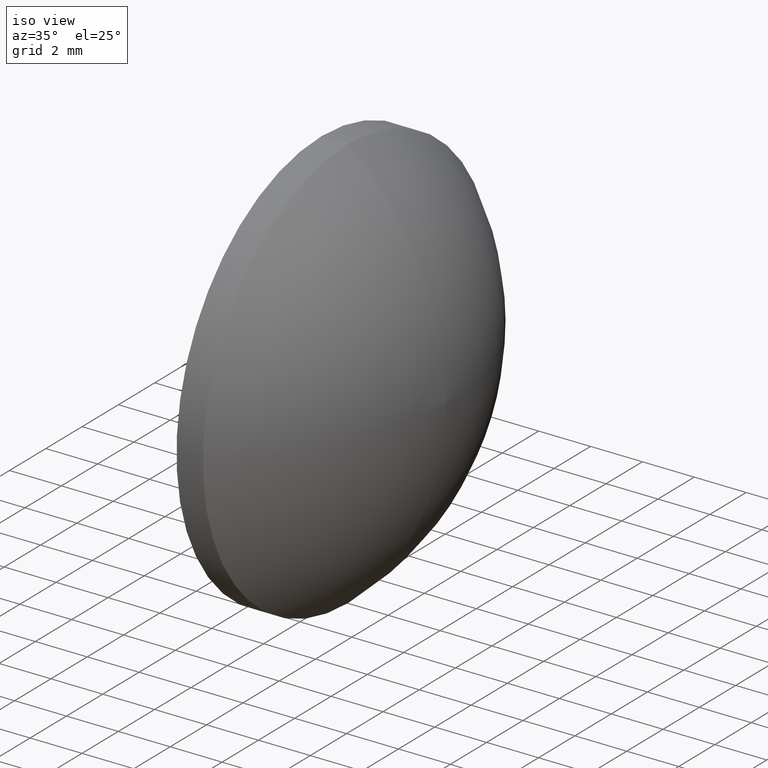
[diagram: clean part render]
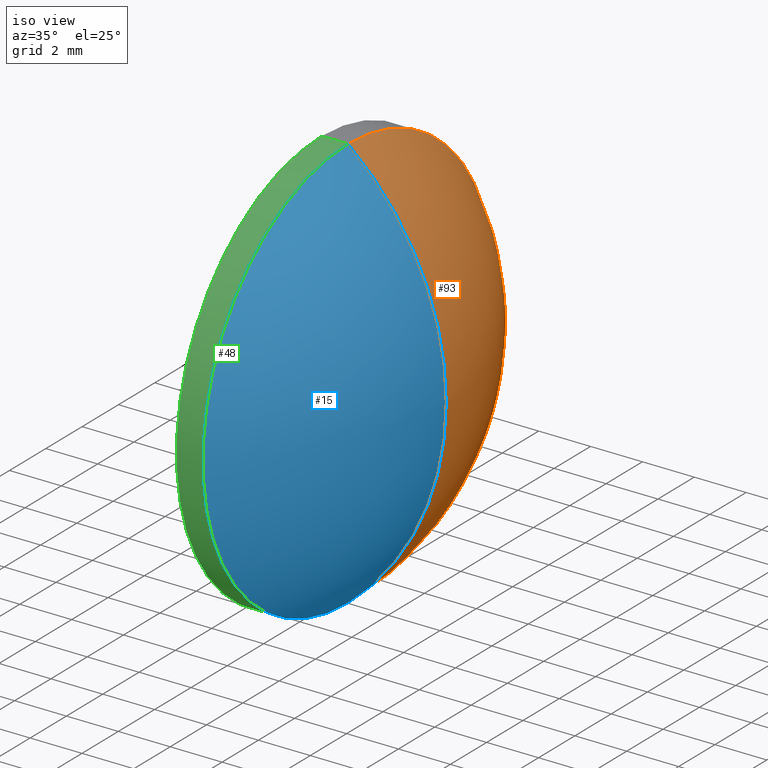
[diagram: same view with three faces highlighted in distinct colors, each labeled with its STEP entity id]
A machine part, iso view with three faces highlighted in distinct colors.
Their STEP definitions:

[orange] entity #93 — the highlighted toroidal blend (fillet) surface has major radius 0.0051 mm and minor (blend) radius 10.3449 mm.
#4 = DIRECTION ( 'NONE',  ( -0.0000000000000000000, 1.000000000000000000, 1.224646799147353200E-016 ) ) ;
#6 = CARTESIAN_POINT ( 'NONE',  ( 444.3056959863679900, 135.4163009679578000, 0.005081351781899279300 ) ) ;
#10 = VERTEX_POINT ( 'NONE', #75 ) ;
#11 = AXIS2_PLACEMENT_3D ( 'NONE', #70, #33, #102 ) ;
#21 = CARTESIAN_POINT ( 'NONE',  ( 444.3056959863679900, 135.4163009679578000, 0.0000000000000000000 ) ) ;
#24 = AXIS2_PLACEMENT_3D ( 'NONE', #149, #4, #34 ) ;
#33 = DIRECTION ( 'NONE',  ( -1.000000000000000000, -0.0000000000000000000, -0.0000000000000000000 ) ) ;
#34 = DIRECTION ( 'NONE',  ( 0.0000000000000000000, 0.0000000000000000000, 1.000000000000000000 ) ) ;
#37 = FACE_OUTER_BOUND ( 'NONE', #131, .T. ) ;
#49 = TOROIDAL_SURFACE ( 'NONE', #50, 0.005081351781899279300, 10.34485552991298700 ) ;
#50 = AXIS2_PLACEMENT_3D ( 'NONE', #21, #53, #111 ) ;
#53 = DIRECTION ( 'NONE',  ( -1.000000000000000000, -0.0000000000000000000, -0.0000000000000000000 ) ) ;
#56 = EDGE_CURVE ( 'NONE', #59, #10, #58, .T. ) ;
#58 = CIRCLE ( 'NONE', #11, 8.000000000000007100 ) ;
#59 = VERTEX_POINT ( 'NONE', #62 ) ;
#62 = CARTESIAN_POINT ( 'NONE',  ( 450.8705502683110400, 135.4163009679578000, 8.000000000000003600 ) ) ;
#70 = CARTESIAN_POINT ( 'NONE',  ( 450.8705502683110400, 135.4163009679578000, 0.0000000000000000000 ) ) ;
#75 = CARTESIAN_POINT ( 'NONE',  ( 450.8705502683110400, 135.4163009679578000, -8.000000000000003600 ) ) ;
#93 = ADVANCED_FACE ( 'NONE', ( #37 ), #49, .T. ) ;
#95 = DIRECTION ( 'NONE',  ( 0.0000000000000000000, 0.0000000000000000000, -1.000000000000000000 ) ) ;
#97 = ORIENTED_EDGE ( 'NONE', *, *, #56, .F. ) ;
#98 = VERTEX_POINT ( 'NONE', #164 ) ;
#102 = DIRECTION ( 'NONE',  ( 0.0000000000000000000, 0.0000000000000000000, 1.000000000000000000 ) ) ;
#111 = DIRECTION ( 'NONE',  ( 0.0000000000000000000, 0.0000000000000000000, 1.000000000000000000 ) ) ;
#115 = ORIENTED_EDGE ( 'NONE', *, *, #137, .T. ) ;
#118 = CIRCLE ( 'NONE', #24, 10.34485552991298700 ) ;
#122 = DIRECTION ( 'NONE',  ( 0.0000000000000000000, -1.000000000000000000, 0.0000000000000000000 ) ) ;
#124 = AXIS2_PLACEMENT_3D ( 'NONE', #6, #122, #95 ) ;
#131 = EDGE_LOOP ( 'NONE', ( #147, #115, #97 ) ) ;
#137 = EDGE_CURVE ( 'NONE', #98, #10, #118, .T. ) ;
#145 = EDGE_CURVE ( 'NONE', #98, #59, #152, .T. ) ;
#147 = ORIENTED_EDGE ( 'NONE', *, *, #145, .F. ) ;
#149 = CARTESIAN_POINT ( 'NONE',  ( 444.3056959863679900, 135.4163009679578000, -0.005081351781899279300 ) ) ;
#152 = CIRCLE ( 'NONE', #124, 10.34485552991298700 ) ;
#164 = CARTESIAN_POINT ( 'NONE',  ( 454.6505502683110100, 135.4163009679578000, 0.0000000000000000000 ) ) ;

[blue] entity #15 — the highlighted toroidal blend (fillet) surface has major radius 0.0051 mm and minor (blend) radius 10.3449 mm.
#2 = AXIS2_PLACEMENT_3D ( 'NONE', #141, #143, #157 ) ;
#4 = DIRECTION ( 'NONE',  ( -0.0000000000000000000, 1.000000000000000000, 1.224646799147353200E-016 ) ) ;
#6 = CARTESIAN_POINT ( 'NONE',  ( 444.3056959863679900, 135.4163009679578000, 0.005081351781899279300 ) ) ;
#10 = VERTEX_POINT ( 'NONE', #75 ) ;
#15 = ADVANCED_FACE ( 'NONE', ( #134 ), #22, .T. ) ;
#22 = TOROIDAL_SURFACE ( 'NONE', #117, 0.005081351781899279300, 10.34485552991298700 ) ;
#24 = AXIS2_PLACEMENT_3D ( 'NONE', #149, #4, #34 ) ;
#34 = DIRECTION ( 'NONE',  ( 0.0000000000000000000, 0.0000000000000000000, 1.000000000000000000 ) ) ;
#40 = ORIENTED_EDGE ( 'NONE', *, *, #51, .F. ) ;
#41 = CARTESIAN_POINT ( 'NONE',  ( 444.3056959863679900, 135.4163009679578000, 0.0000000000000000000 ) ) ;
#51 = EDGE_CURVE ( 'NONE', #10, #59, #113, .T. ) ;
#59 = VERTEX_POINT ( 'NONE', #62 ) ;
#62 = CARTESIAN_POINT ( 'NONE',  ( 450.8705502683110400, 135.4163009679578000, 8.000000000000003600 ) ) ;
#68 = EDGE_LOOP ( 'NONE', ( #125, #100, #40 ) ) ;
#74 = DIRECTION ( 'NONE',  ( -1.000000000000000000, -0.0000000000000000000, -0.0000000000000000000 ) ) ;
#75 = CARTESIAN_POINT ( 'NONE',  ( 450.8705502683110400, 135.4163009679578000, -8.000000000000003600 ) ) ;
#92 = DIRECTION ( 'NONE',  ( 0.0000000000000000000, 0.0000000000000000000, 1.000000000000000000 ) ) ;
#95 = DIRECTION ( 'NONE',  ( 0.0000000000000000000, 0.0000000000000000000, -1.000000000000000000 ) ) ;
#98 = VERTEX_POINT ( 'NONE', #164 ) ;
#100 = ORIENTED_EDGE ( 'NONE', *, *, #145, .T. ) ;
#113 = CIRCLE ( 'NONE', #2, 8.000000000000007100 ) ;
#117 = AXIS2_PLACEMENT_3D ( 'NONE', #41, #74, #92 ) ;
#118 = CIRCLE ( 'NONE', #24, 10.34485552991298700 ) ;
#122 = DIRECTION ( 'NONE',  ( 0.0000000000000000000, -1.000000000000000000, 0.0000000000000000000 ) ) ;
#124 = AXIS2_PLACEMENT_3D ( 'NONE', #6, #122, #95 ) ;
#125 = ORIENTED_EDGE ( 'NONE', *, *, #137, .F. ) ;
#134 = FACE_OUTER_BOUND ( 'NONE', #68, .T. ) ;
#137 = EDGE_CURVE ( 'NONE', #98, #10, #118, .T. ) ;
#141 = CARTESIAN_POINT ( 'NONE',  ( 450.8705502683110400, 135.4163009679578000, 0.0000000000000000000 ) ) ;
#143 = DIRECTION ( 'NONE',  ( -1.000000000000000000, -0.0000000000000000000, -0.0000000000000000000 ) ) ;
#145 = EDGE_CURVE ( 'NONE', #98, #59, #152, .T. ) ;
#149 = CARTESIAN_POINT ( 'NONE',  ( 444.3056959863679900, 135.4163009679578000, -0.005081351781899279300 ) ) ;
#152 = CIRCLE ( 'NONE', #124, 10.34485552991298700 ) ;
#157 = DIRECTION ( 'NONE',  ( 0.0000000000000000000, 0.0000000000000000000, 1.000000000000000000 ) ) ;
#164 = CARTESIAN_POINT ( 'NONE',  ( 454.6505502683110100, 135.4163009679578000, 0.0000000000000000000 ) ) ;

[green] entity #48 — the highlighted cylindrical surface (partial cylindrical patch) has radius 8 mm, axis along (-1, -0, -0).
#2 = AXIS2_PLACEMENT_3D ( 'NONE', #141, #143, #157 ) ;
#7 = ORIENTED_EDGE ( 'NONE', *, *, #87, .T. ) ;
#10 = VERTEX_POINT ( 'NONE', #75 ) ;
#13 = ORIENTED_EDGE ( 'NONE', *, *, #51, .T. ) ;
#16 = DIRECTION ( 'NONE',  ( 0.0000000000000000000, 0.0000000000000000000, 1.000000000000000000 ) ) ;
#18 = CARTESIAN_POINT ( 'NONE',  ( 447.9277335634653200, 135.4163009679578000, 8.000000000000007100 ) ) ;
#28 = VECTOR ( 'NONE', #106, 1000.000000000000000 ) ;
#36 = FACE_OUTER_BOUND ( 'NONE', #88, .T. ) ;
#44 = EDGE_CURVE ( 'NONE', #10, #127, #72, .T. ) ;
#47 = DIRECTION ( 'NONE',  ( -1.000000000000000000, -0.0000000000000000000, -0.0000000000000000000 ) ) ;
#48 = ADVANCED_FACE ( 'NONE', ( #36 ), #138, .T. ) ;
#51 = EDGE_CURVE ( 'NONE', #10, #59, #113, .T. ) ;
#54 = AXIS2_PLACEMENT_3D ( 'NONE', #84, #108, #142 ) ;
#55 = ORIENTED_EDGE ( 'NONE', *, *, #159, .F. ) ;
#59 = VERTEX_POINT ( 'NONE', #62 ) ;
#62 = CARTESIAN_POINT ( 'NONE',  ( 450.8705502683110400, 135.4163009679578000, 8.000000000000003600 ) ) ;
#72 = LINE ( 'NONE', #120, #81 ) ;
#75 = CARTESIAN_POINT ( 'NONE',  ( 450.8705502683110400, 135.4163009679578000, -8.000000000000003600 ) ) ;
#76 = CARTESIAN_POINT ( 'NONE',  ( 449.8505502683110500, 135.4163009679578000, 8.000000000000007100 ) ) ;
#81 = VECTOR ( 'NONE', #47, 1000.000000000000000 ) ;
#84 = CARTESIAN_POINT ( 'NONE',  ( 449.8505502683110500, 135.4163009679578000, 0.0000000000000000000 ) ) ;
#87 = EDGE_CURVE ( 'NONE', #59, #135, #90, .T. ) ;
#88 = EDGE_LOOP ( 'NONE', ( #151, #13, #7, #55 ) ) ;
#90 = LINE ( 'NONE', #18, #28 ) ;
#94 = DIRECTION ( 'NONE',  ( -1.000000000000000000, -0.0000000000000000000, -0.0000000000000000000 ) ) ;
#106 = DIRECTION ( 'NONE',  ( -1.000000000000000000, -0.0000000000000000000, -0.0000000000000000000 ) ) ;
#108 = DIRECTION ( 'NONE',  ( -1.000000000000000000, -0.0000000000000000000, -0.0000000000000000000 ) ) ;
#113 = CIRCLE ( 'NONE', #2, 8.000000000000007100 ) ;
#120 = CARTESIAN_POINT ( 'NONE',  ( 447.9277335634653200, 135.4163009679578000, -8.000000000000007100 ) ) ;
#127 = VERTEX_POINT ( 'NONE', #132 ) ;
#128 = CIRCLE ( 'NONE', #54, 8.000000000000007100 ) ;
#132 = CARTESIAN_POINT ( 'NONE',  ( 449.8505502683110500, 135.4163009679578000, -8.000000000000007100 ) ) ;
#135 = VERTEX_POINT ( 'NONE', #76 ) ;
#138 = CYLINDRICAL_SURFACE ( 'NONE', #166, 8.000000000000007100 ) ;
#141 = CARTESIAN_POINT ( 'NONE',  ( 450.8705502683110400, 135.4163009679578000, 0.0000000000000000000 ) ) ;
#142 = DIRECTION ( 'NONE',  ( 0.0000000000000000000, 0.0000000000000000000, 1.000000000000000000 ) ) ;
#143 = DIRECTION ( 'NONE',  ( -1.000000000000000000, -0.0000000000000000000, -0.0000000000000000000 ) ) ;
#144 = CARTESIAN_POINT ( 'NONE',  ( 447.9277335634653200, 135.4163009679578000, 0.0000000000000000000 ) ) ;
#151 = ORIENTED_EDGE ( 'NONE', *, *, #44, .F. ) ;
#157 = DIRECTION ( 'NONE',  ( 0.0000000000000000000, 0.0000000000000000000, 1.000000000000000000 ) ) ;
#159 = EDGE_CURVE ( 'NONE', #127, #135, #128, .T. ) ;
#166 = AXIS2_PLACEMENT_3D ( 'NONE', #144, #94, #16 ) ;